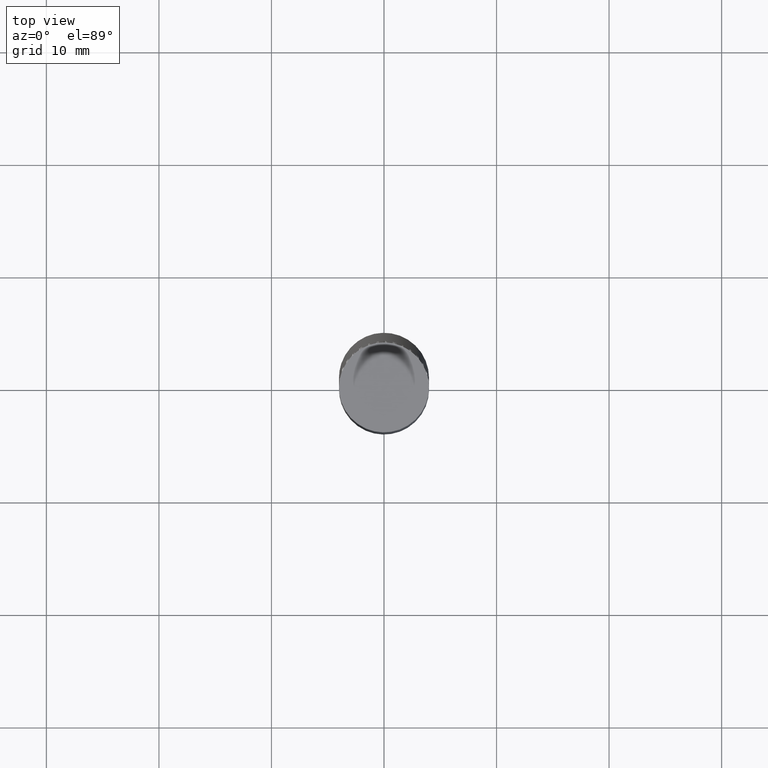
[diagram: clean part render]
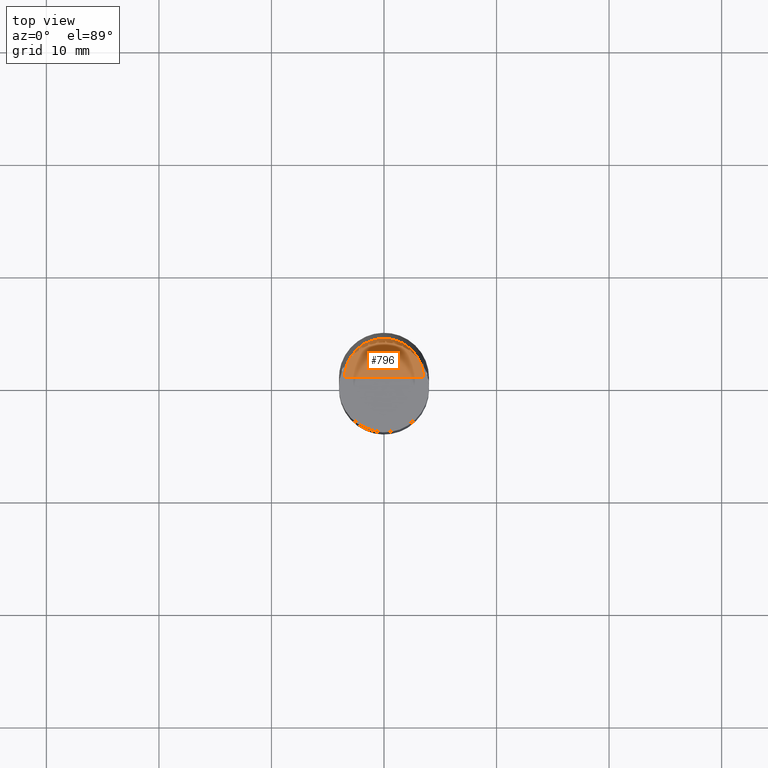
[diagram: same view with one face highlighted and labeled with its STEP entity id]
A machine part, top view. The second image highlights one B-rep face of the part: STEP entity #796.
In plain terms, the highlighted face is a freeform B-spline surface patch.
Its self-contained STEP definition (entity closure, byte-faithful):
#576=CARTESIAN_POINT('',(3.5,0.0,44.0));
#577=CARTESIAN_POINT('',(3.5,3.5,44.0));
#578=CARTESIAN_POINT('',(0.0,3.5,44.0));
#579=CARTESIAN_POINT('',(-3.5,3.5,44.0));
#580=CARTESIAN_POINT('',(-3.5,0.0,44.0));
#581=CARTESIAN_POINT('',(0.0,0.0,44.0));
#781=(
BOUNDED_SURFACE()
B_SPLINE_SURFACE(1,2,(
(#576,#577,#578,#579,#580),
(#581,#581,#581,#581,#581)
), .UNSPECIFIED.,.F.,.F.,.F.)
B_SPLINE_SURFACE_WITH_KNOTS((2,2),(3,2,3),(
0.0,1.0),(
0.0,0.5,1.0), .UNSPECIFIED.)
GEOMETRIC_REPRESENTATION_ITEM()
RATIONAL_B_SPLINE_SURFACE(((1.0,0.707106781187,1.0,0.707106781187,1.0),
(1.0,0.707106781187,1.0,0.707106781187,1.0)
))
REPRESENTATION_ITEM('')
SURFACE()
);
#782=(
BOUNDED_CURVE()
B_SPLINE_CURVE(1,(#581,#576),.UNSPECIFIED.,.F.,.F.)
B_SPLINE_CURVE_WITH_KNOTS((2,2),
(0.0,1.0),.UNSPECIFIED.)
CURVE()
GEOMETRIC_REPRESENTATION_ITEM()
RATIONAL_B_SPLINE_CURVE((1.0,1.0))
REPRESENTATION_ITEM('')
);
#783=(
BOUNDED_CURVE()
B_SPLINE_CURVE(2,(#576,#577,#578,#579,#580),.UNSPECIFIED.,.F.,.F.)
B_SPLINE_CURVE_WITH_KNOTS((3,2,3),
(0.0,0.5,1.0),.UNSPECIFIED.)
CURVE()
GEOMETRIC_REPRESENTATION_ITEM()
RATIONAL_B_SPLINE_CURVE((1.0,0.707106781187,1.0,0.707106781187,1.0))
REPRESENTATION_ITEM('')
);
#784=(
BOUNDED_CURVE()
B_SPLINE_CURVE(1,(#580,#581),.UNSPECIFIED.,.F.,.F.)
B_SPLINE_CURVE_WITH_KNOTS((2,2),
(0.0,1.0),.UNSPECIFIED.)
CURVE()
GEOMETRIC_REPRESENTATION_ITEM()
RATIONAL_B_SPLINE_CURVE((1.0,1.0))
REPRESENTATION_ITEM('')
);
#785=VERTEX_POINT('',#576);
#786=VERTEX_POINT('',#580);
#787=VERTEX_POINT('',#581);
#788=EDGE_CURVE('',#787,#785,#782,.T.);
#789=EDGE_CURVE('',#785,#786,#783,.T.);
#790=EDGE_CURVE('',#786,#787,#784,.T.);
#791=ORIENTED_EDGE('',*,*,#788,.T.);
#792=ORIENTED_EDGE('',*,*,#789,.T.);
#793=ORIENTED_EDGE('',*,*,#790,.T.);
#794=EDGE_LOOP('',(#791,#792,#793));
#795=FACE_OUTER_BOUND('',#794,.T.);
#796=ADVANCED_FACE('',(#795),#781,.T.);